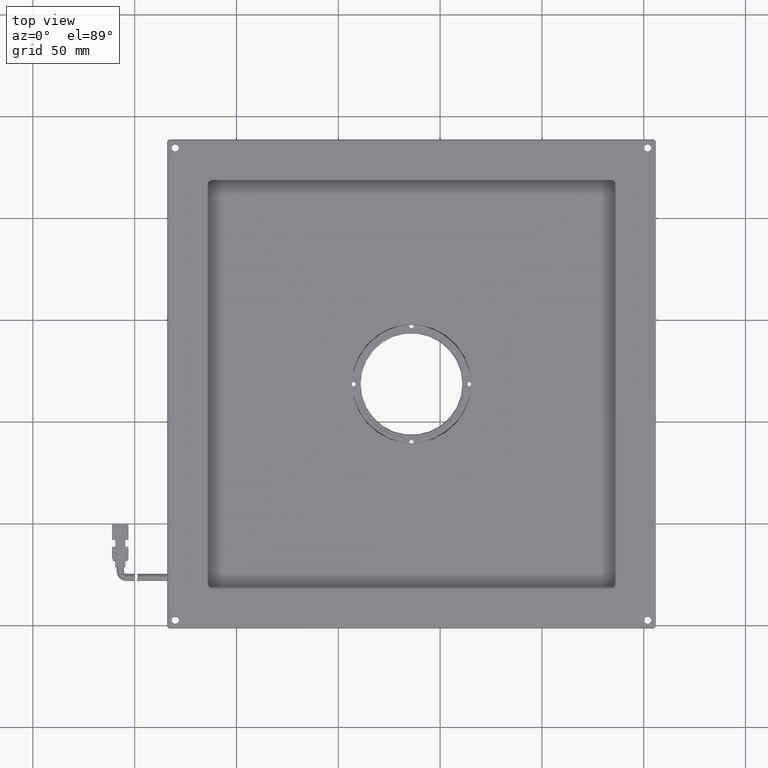
[diagram: clean part render]
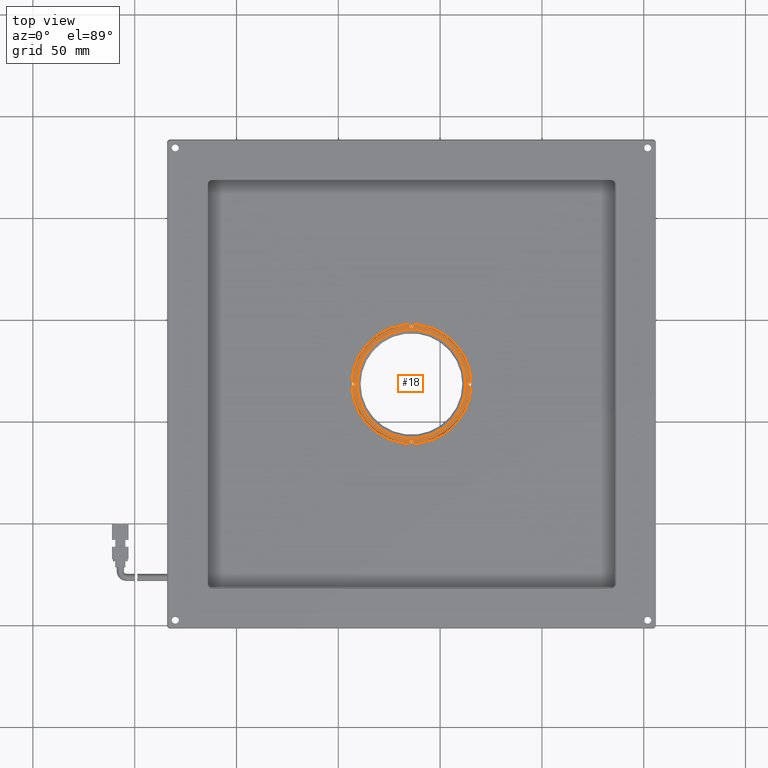
[diagram: same view with one face highlighted and labeled with its STEP entity id]
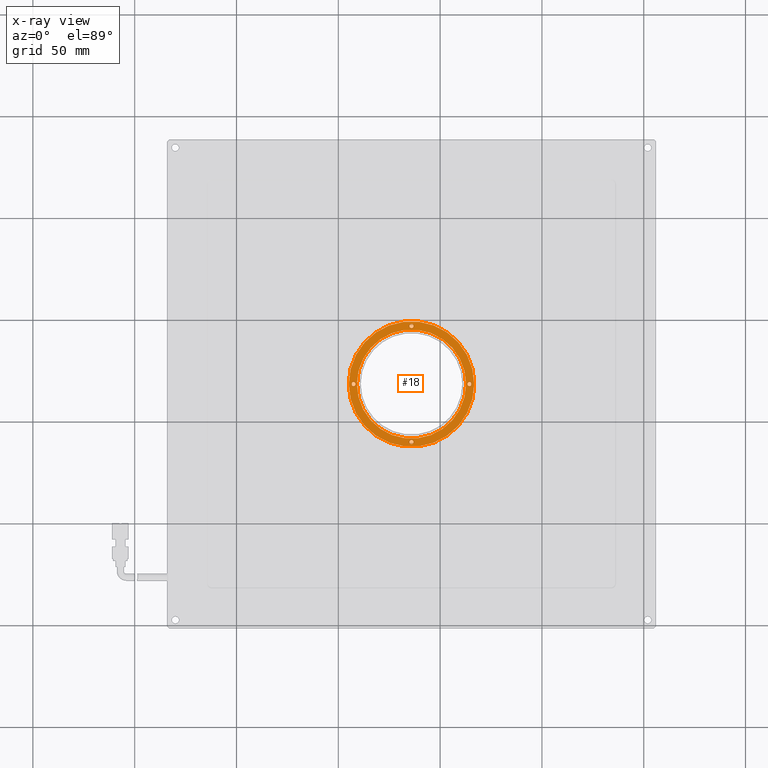
[diagram: x-ray of the same camera — body ghosted, the highlighted face saturated]
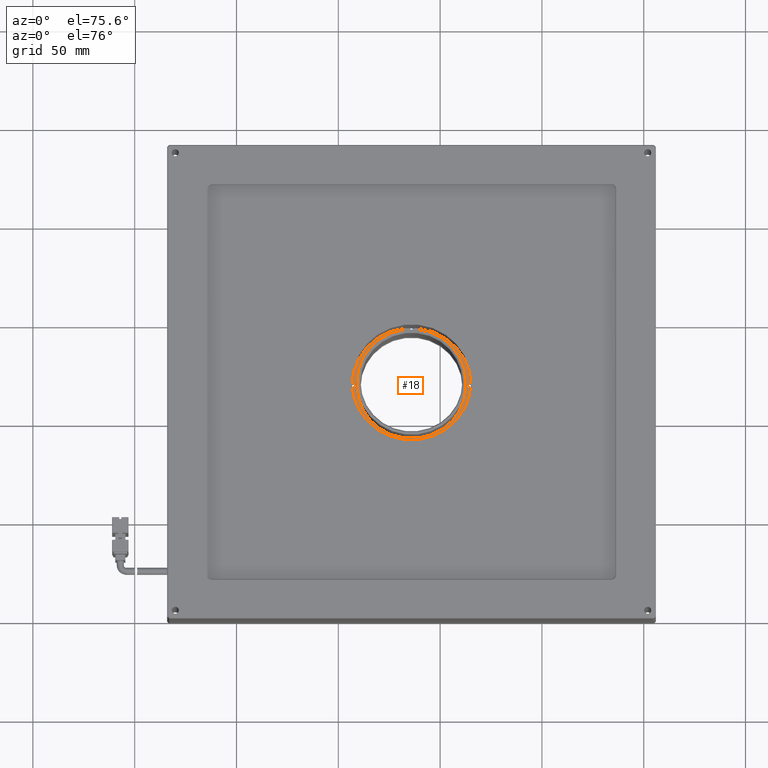
[diagram: same view with one face highlighted and labeled with its STEP entity id]
A machine part, top view. The second image highlights one B-rep face of the part: STEP entity #18.
The next image is the same camera in x-ray: the body ghosted, the highlighted face saturated — about 0% of this face is hidden behind the body in this view.
A second angle (auxiliary view) of the same face is appended — the face is thin or edge-on in the first view.
In plain terms, the highlighted planar face has unit normal (0, 0, -1).
Its self-contained STEP definition (entity closure, byte-faithful):
#18 = ADVANCED_FACE ( 'NONE', ( #11108, #17250, #4199, #17780, #10568, #18839 ), #438, .F. ) ;
#34 = VERTEX_POINT ( 'NONE', #5596 ) ;
#190 = DIRECTION ( 'NONE',  ( 0.9999999981467232500, -6.088147129491625600E-005, 0.0000000000000000000 ) ) ;
#422 = ORIENTED_EDGE ( 'NONE', *, *, #13617, .F. ) ;
#438 = PLANE ( 'NONE',  #11903 ) ;
#495 = EDGE_LOOP ( 'NONE', ( #1397, #5106 ) ) ;
#648 = DIRECTION ( 'NONE',  ( 0.0000000000000000000, 0.0000000000000000000, -1.000000000000000000 ) ) ;
#665 = DIRECTION ( 'NONE',  ( 0.0000000000000000000, 0.0000000000000000000, -1.000000000000000000 ) ) ;
#1232 = DIRECTION ( 'NONE',  ( 0.0000000000000000000, 0.0000000000000000000, -1.000000000000000000 ) ) ;
#1325 = CIRCLE ( 'NONE', #15562, 0.9999999999998089300 ) ;
#1397 = ORIENTED_EDGE ( 'NONE', *, *, #20250, .T. ) ;
#2265 = EDGE_CURVE ( 'NONE', #4970, #7320, #4781, .T. ) ;
#2654 = CARTESIAN_POINT ( 'NONE',  ( -14.05289445487915900, 18.54377205333210600, -2.999999999999976500 ) ) ;
#2879 = DIRECTION ( 'NONE',  ( 0.9999999981467232500, -6.088147129318153200E-005, 0.0000000000000000000 ) ) ;
#3054 = CIRCLE ( 'NONE', #12962, 30.80000000000002200 ) ;
#3104 = CIRCLE ( 'NONE', #10576, 0.9999999999998089300 ) ;
#3415 = CARTESIAN_POINT ( 'NONE',  ( 16.74710548803994200, 18.54189690401627300, -2.999999999999976500 ) ) ;
#3705 = ORIENTED_EDGE ( 'NONE', *, *, #17099, .T. ) ;
#3788 = EDGE_LOOP ( 'NONE', ( #3705, #11682 ) ) ;
#4096 = EDGE_CURVE ( 'NONE', #11793, #14800, #5409, .T. ) ;
#4199 = FACE_BOUND ( 'NONE', #20819, .T. ) ;
#4292 = CARTESIAN_POINT ( 'NONE',  ( -14.05462968244778700, -9.957963015781480500, -3.000000000000000000 ) ) ;
#4436 = CARTESIAN_POINT ( 'NONE',  ( -44.85289439779825900, 18.54564720264793500, -2.999999999999976500 ) ) ;
#4481 = VERTEX_POINT ( 'NONE', #7001 ) ;
#4505 = EDGE_CURVE ( 'NONE', #34, #6503, #14653, .T. ) ;
#4542 = DIRECTION ( 'NONE',  ( 0.9999999981467232500, -6.088147129325996800E-005, 0.0000000000000000000 ) ) ;
#4607 = VERTEX_POINT ( 'NONE', #3415 ) ;
#4781 = CIRCLE ( 'NONE', #11726, 0.9999999999998071500 ) ;
#4970 = VERTEX_POINT ( 'NONE', #13591 ) ;
#5106 = ORIENTED_EDGE ( 'NONE', *, *, #9836, .T. ) ;
#5209 = DIRECTION ( 'NONE',  ( 0.0000000000000000000, 0.0000000000000000000, -1.000000000000000000 ) ) ;
#5394 = AXIS2_PLACEMENT_3D ( 'NONE', #13794, #16771, #190 ) ;
#5409 = CIRCLE ( 'NONE', #11221, 0.9999999999998089300 ) ;
#5596 = CARTESIAN_POINT ( 'NONE',  ( -43.55115927827525000, 18.54556795109849100, -3.000000000000000000 ) ) ;
#5662 = ORIENTED_EDGE ( 'NONE', *, *, #14906, .T. ) ;
#6012 = DIRECTION ( 'NONE',  ( 0.0000000000000000000, 0.0000000000000000000, -1.000000000000000000 ) ) ;
#6044 = ORIENTED_EDGE ( 'NONE', *, *, #4505, .T. ) ;
#6156 = DIRECTION ( 'NONE',  ( 0.0000000000000000000, -0.0000000000000000000, 1.000000000000000000 ) ) ;
#6268 = VERTEX_POINT ( 'NONE', #6702 ) ;
#6408 = CIRCLE ( 'NONE', #20898, 0.9999999999998089300 ) ;
#6503 = VERTEX_POINT ( 'NONE', #14493 ) ;
#6674 = CIRCLE ( 'NONE', #13273, 26.80000000000004000 ) ;
#6702 = CARTESIAN_POINT ( 'NONE',  ( 12.74710549545305900, 18.54214042990144400, -3.000000000000000000 ) ) ;
#6750 = DIRECTION ( 'NONE',  ( -0.9999999981467232500, 6.088147129327337100E-005, 0.0000000000000000000 ) ) ;
#6850 = CIRCLE ( 'NONE', #7483, 0.9999999999998071500 ) ;
#7001 = CARTESIAN_POINT ( 'NONE',  ( -13.05462968430125400, -9.958023897252774100, -3.000000000000000000 ) ) ;
#7320 = VERTEX_POINT ( 'NONE', #14229 ) ;
#7483 = AXIS2_PLACEMENT_3D ( 'NONE', #19301, #665, #12542 ) ;
#7657 = EDGE_LOOP ( 'NONE', ( #19562, #10857 ) ) ;
#7744 = DIRECTION ( 'NONE',  ( 0.0000000000000000000, 0.0000000000000000000, -1.000000000000000000 ) ) ;
#7749 = CARTESIAN_POINT ( 'NONE',  ( -14.05462968244778700, -9.957963015781480500, -3.000000000000000000 ) ) ;
#9455 = EDGE_CURVE ( 'NONE', #16320, #6268, #9818, .T. ) ;
#9613 = VERTEX_POINT ( 'NONE', #13883 ) ;
#9818 = CIRCLE ( 'NONE', #18272, 26.80000000000004000 ) ;
#9836 = EDGE_CURVE ( 'NONE', #9613, #4481, #1325, .T. ) ;
#9882 = CIRCLE ( 'NONE', #13138, 0.9999999999998089300 ) ;
#10031 = CARTESIAN_POINT ( 'NONE',  ( -13.05115922916398400, 47.04544624097441400, -3.000000000000000000 ) ) ;
#10059 = DIRECTION ( 'NONE',  ( 0.0000000000000000000, 0.0000000000000000000, -1.000000000000000000 ) ) ;
#10214 = CARTESIAN_POINT ( 'NONE',  ( -14.05289445487915900, 18.54377205333210600, -3.000000000000000000 ) ) ;
#10367 = ORIENTED_EDGE ( 'NONE', *, *, #16187, .F. ) ;
#10568 = FACE_BOUND ( 'NONE', #7657, .T. ) ;
#10576 = AXIS2_PLACEMENT_3D ( 'NONE', #13691, #5209, #12114 ) ;
#10857 = ORIENTED_EDGE ( 'NONE', *, *, #21620, .T. ) ;
#11100 = DIRECTION ( 'NONE',  ( 0.9999999981467232500, -6.088147129318153200E-005, 0.0000000000000000000 ) ) ;
#11108 = FACE_BOUND ( 'NONE', #19443, .T. ) ;
#11221 = AXIS2_PLACEMENT_3D ( 'NONE', #14523, #7744, #16667 ) ;
#11682 = ORIENTED_EDGE ( 'NONE', *, *, #4096, .T. ) ;
#11688 = CARTESIAN_POINT ( 'NONE',  ( -14.05115922731051700, 47.04550712244570600, -3.000000000000000000 ) ) ;
#11726 = AXIS2_PLACEMENT_3D ( 'NONE', #14475, #19652, #17966 ) ;
#11793 = VERTEX_POINT ( 'NONE', #16747 ) ;
#11903 = AXIS2_PLACEMENT_3D ( 'NONE', #14099, #648, #12531 ) ;
#12002 = DIRECTION ( 'NONE',  ( 0.0000000000000000000, -0.0000000000000000000, 1.000000000000000000 ) ) ;
#12114 = DIRECTION ( 'NONE',  ( 0.9999999981467232500, -6.088147129491625600E-005, 0.0000000000000000000 ) ) ;
#12531 = DIRECTION ( 'NONE',  ( 0.9999999981467232500, -6.088147129328112300E-005, 0.0000000000000000000 ) ) ;
#12542 = DIRECTION ( 'NONE',  ( 0.9999999981467232500, -6.088147129491636400E-005, 0.0000000000000000000 ) ) ;
#12727 = DIRECTION ( 'NONE',  ( 0.9999999981467232500, -6.088147129325996800E-005, 0.0000000000000000000 ) ) ;
#12962 = AXIS2_PLACEMENT_3D ( 'NONE', #19789, #16461, #4542 ) ;
#13138 = AXIS2_PLACEMENT_3D ( 'NONE', #11688, #10059, #20229 ) ;
#13244 = CARTESIAN_POINT ( 'NONE',  ( -40.85289440521138000, 18.54540367676276700, -3.000000000000000000 ) ) ;
#13273 = AXIS2_PLACEMENT_3D ( 'NONE', #14561, #6156, #17986 ) ;
#13591 = CARTESIAN_POINT ( 'NONE',  ( 15.44537036851693700, 18.54197615556572700, -3.000000000000000000 ) ) ;
#13617 = EDGE_CURVE ( 'NONE', #6268, #16320, #6674, .T. ) ;
#13680 = ORIENTED_EDGE ( 'NONE', *, *, #9455, .F. ) ;
#13691 = CARTESIAN_POINT ( 'NONE',  ( -42.55115928012871500, 18.54550706962719900, -3.000000000000000000 ) ) ;
#13794 = CARTESIAN_POINT ( 'NONE',  ( -42.55115928012871500, 18.54550706962719900, -3.000000000000000000 ) ) ;
#13883 = CARTESIAN_POINT ( 'NONE',  ( -15.05462968059431900, -9.957902134310186800, -3.000000000000000000 ) ) ;
#14099 = CARTESIAN_POINT ( 'NONE',  ( -14.05289445487915900, 18.54377205333210600, -3.000000000000000000 ) ) ;
#14229 = CARTESIAN_POINT ( 'NONE',  ( 13.44537037222387700, 18.54209791850831500, -3.000000000000000000 ) ) ;
#14470 = AXIS2_PLACEMENT_3D ( 'NONE', #2654, #6012, #12727 ) ;
#14475 = CARTESIAN_POINT ( 'NONE',  ( 14.44537037037040700, 18.54203703703702300, -3.000000000000000000 ) ) ;
#14493 = CARTESIAN_POINT ( 'NONE',  ( -41.55115928198218700, 18.54544618815590300, -3.000000000000000000 ) ) ;
#14523 = CARTESIAN_POINT ( 'NONE',  ( -14.05115922731051700, 47.04550712244570600, -3.000000000000000000 ) ) ;
#14561 = CARTESIAN_POINT ( 'NONE',  ( -14.05289445487915900, 18.54377205333210600, -3.000000000000000000 ) ) ;
#14653 = CIRCLE ( 'NONE', #5394, 0.9999999999998089300 ) ;
#14680 = CIRCLE ( 'NONE', #14470, 30.80000000000002200 ) ;
#14800 = VERTEX_POINT ( 'NONE', #10031 ) ;
#14906 = EDGE_CURVE ( 'NONE', #6503, #34, #3104, .T. ) ;
#15562 = AXIS2_PLACEMENT_3D ( 'NONE', #7749, #1232, #11100 ) ;
#16187 = EDGE_CURVE ( 'NONE', #20353, #4607, #14680, .T. ) ;
#16320 = VERTEX_POINT ( 'NONE', #13244 ) ;
#16461 = DIRECTION ( 'NONE',  ( 0.0000000000000000000, 0.0000000000000000000, -1.000000000000000000 ) ) ;
#16667 = DIRECTION ( 'NONE',  ( 0.9999999981467232500, -6.088147129491625600E-005, 0.0000000000000000000 ) ) ;
#16747 = CARTESIAN_POINT ( 'NONE',  ( -15.05115922545704900, 47.04556800391700500, -3.000000000000000000 ) ) ;
#16771 = DIRECTION ( 'NONE',  ( 0.0000000000000000000, 0.0000000000000000000, -1.000000000000000000 ) ) ;
#17099 = EDGE_CURVE ( 'NONE', #14800, #11793, #9882, .T. ) ;
#17250 = FACE_BOUND ( 'NONE', #495, .T. ) ;
#17780 = FACE_BOUND ( 'NONE', #3788, .T. ) ;
#17966 = DIRECTION ( 'NONE',  ( 0.9999999981467232500, -6.088147129491636400E-005, 0.0000000000000000000 ) ) ;
#17986 = DIRECTION ( 'NONE',  ( -0.9999999981467232500, 6.088147129327337100E-005, 0.0000000000000000000 ) ) ;
#18272 = AXIS2_PLACEMENT_3D ( 'NONE', #10214, #12002, #6750 ) ;
#18296 = EDGE_LOOP ( 'NONE', ( #20325, #10367 ) ) ;
#18839 = FACE_OUTER_BOUND ( 'NONE', #18296, .T. ) ;
#19301 = CARTESIAN_POINT ( 'NONE',  ( 14.44537037037040700, 18.54203703703702300, -3.000000000000000000 ) ) ;
#19314 = EDGE_CURVE ( 'NONE', #4607, #20353, #3054, .T. ) ;
#19443 = EDGE_LOOP ( 'NONE', ( #13680, #422 ) ) ;
#19562 = ORIENTED_EDGE ( 'NONE', *, *, #2265, .T. ) ;
#19652 = DIRECTION ( 'NONE',  ( 0.0000000000000000000, 0.0000000000000000000, -1.000000000000000000 ) ) ;
#19789 = CARTESIAN_POINT ( 'NONE',  ( -14.05289445487915900, 18.54377205333210600, -2.999999999999976500 ) ) ;
#20229 = DIRECTION ( 'NONE',  ( 0.9999999981467232500, -6.088147129491625600E-005, 0.0000000000000000000 ) ) ;
#20250 = EDGE_CURVE ( 'NONE', #4481, #9613, #6408, .T. ) ;
#20325 = ORIENTED_EDGE ( 'NONE', *, *, #19314, .F. ) ;
#20353 = VERTEX_POINT ( 'NONE', #4436 ) ;
#20819 = EDGE_LOOP ( 'NONE', ( #5662, #6044 ) ) ;
#20898 = AXIS2_PLACEMENT_3D ( 'NONE', #4292, #21486, #2879 ) ;
#21486 = DIRECTION ( 'NONE',  ( 0.0000000000000000000, 0.0000000000000000000, -1.000000000000000000 ) ) ;
#21620 = EDGE_CURVE ( 'NONE', #7320, #4970, #6850, .T. ) ;